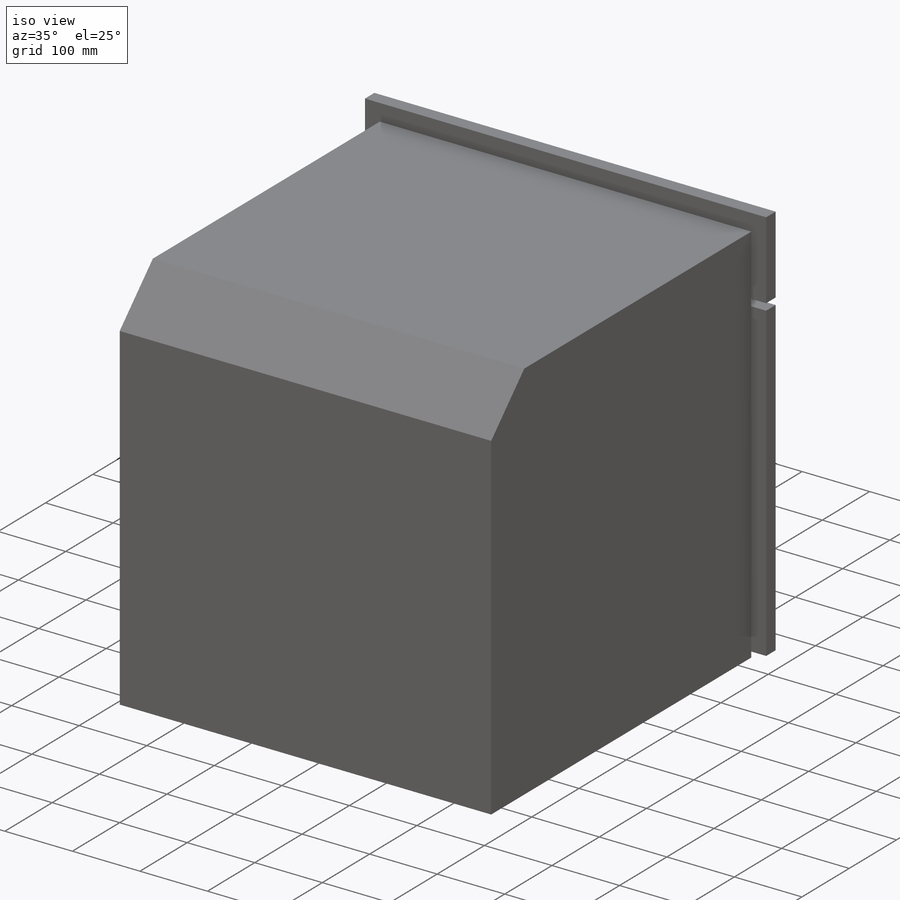
[diagram: iso view]
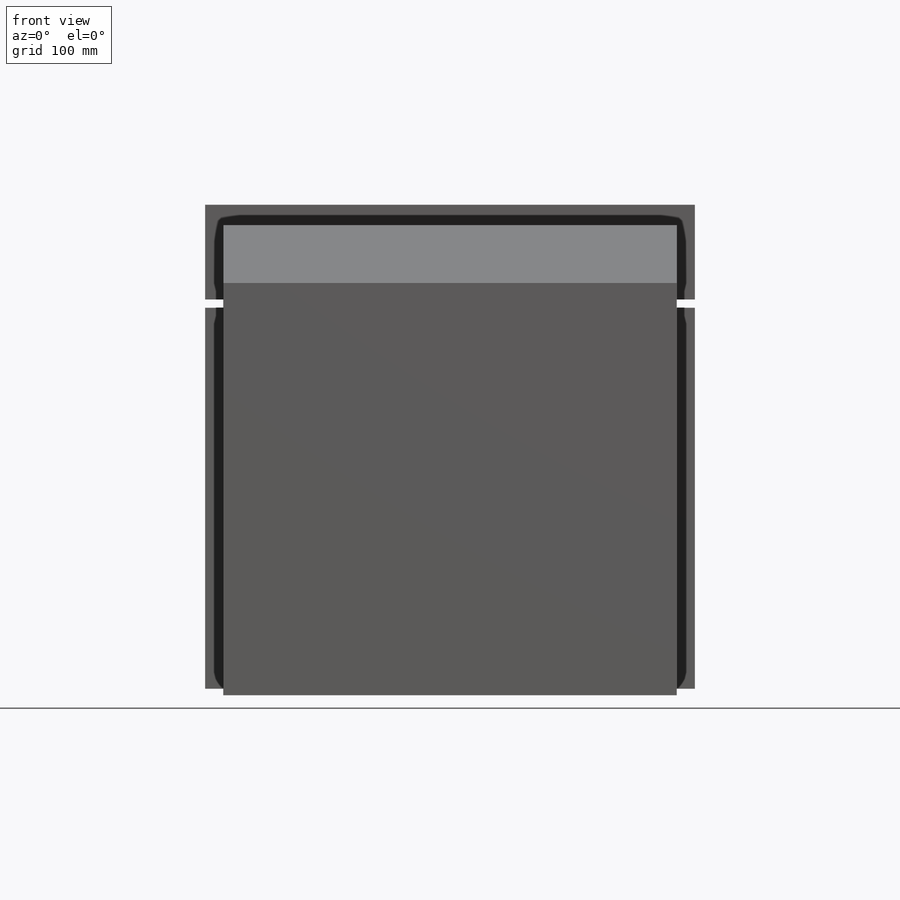
[diagram: front view]
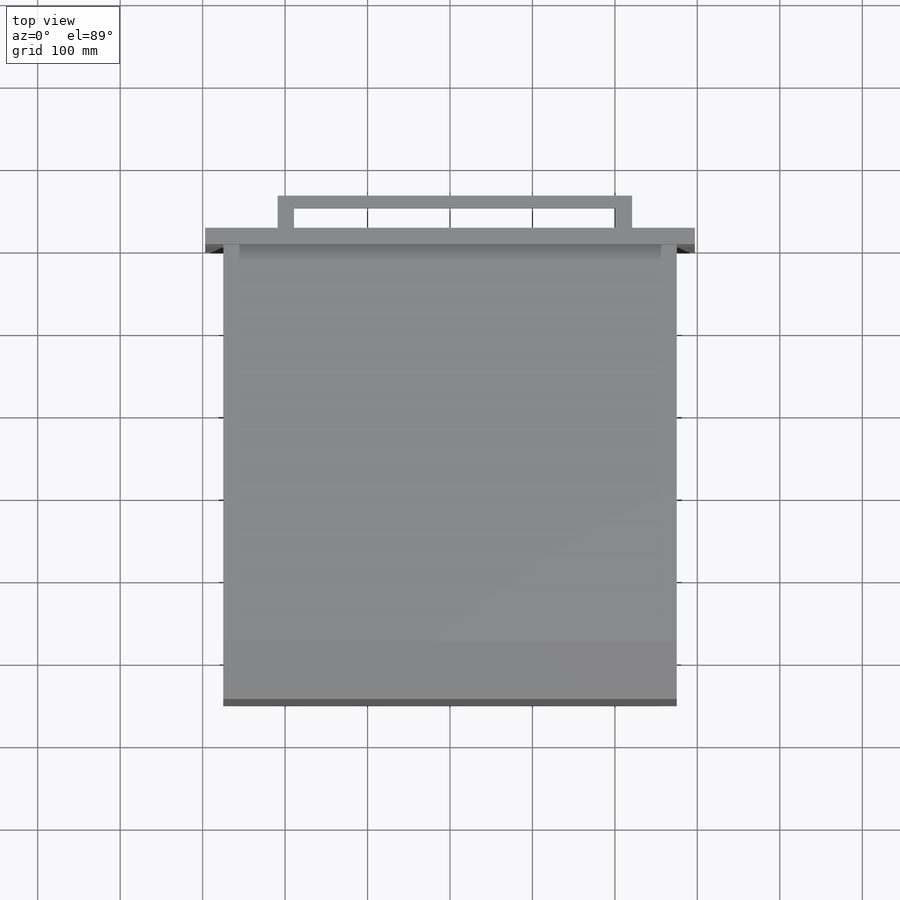
[diagram: top view]
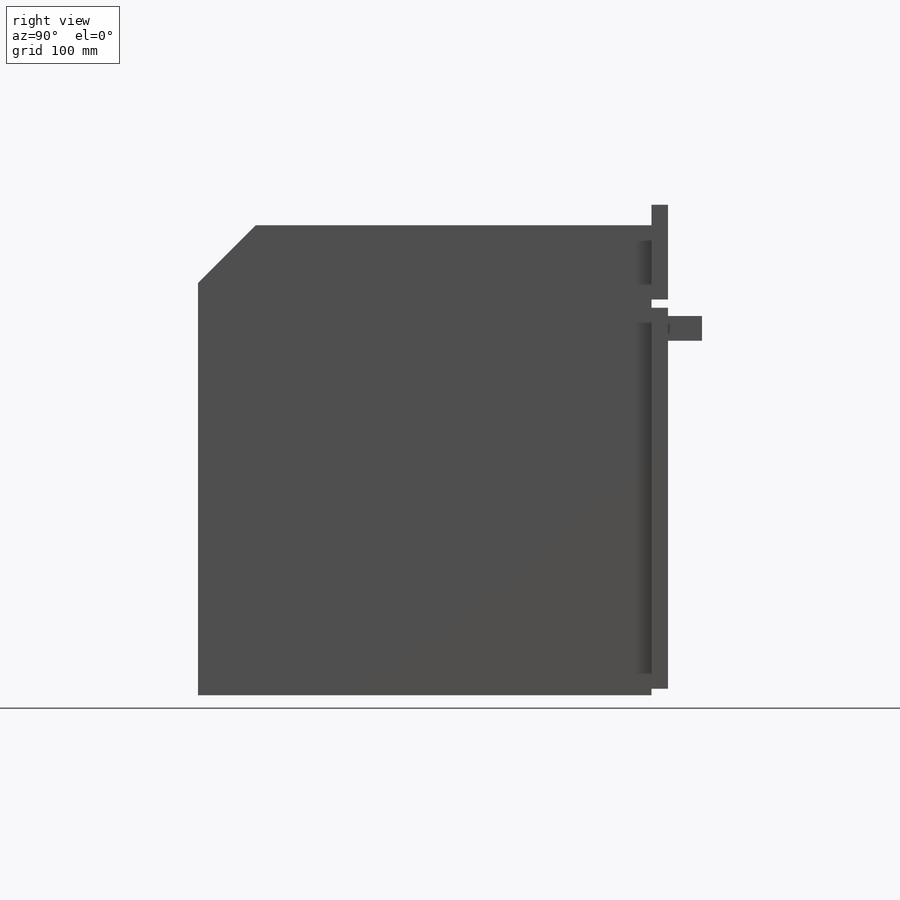
[diagram: right view]
SOLIDWORKS PART (.sldprt)
format: sldprt  version: not decoded by parser v0  size: 210,944 bytes
history: native  units: mm
features: sketch x5, extrude x4, material x1, chamfer x1, cut_extrude x1, plane x1 (+12 scaffold rows collapsed)
feature tree (25):
  scaffold x12  (default folders/planes/origin — collapsed)
  material  "Material <not specified>"
  sketch  "Sketch2"  dims[D1=570.0mm D2=550.0mm]
  extrude  "Boss-Extrude2"  Depth=550mm
  chamfer  "Chamfer1"  Distance=70mm Angle=45deg
  sketch  "Sketch3"  dims[D1=596.0mm D2=595.0mm]
  extrude  "Boss-Extrude3"  Depth=20mm
  sketch  "Sketch4"  dims[D1=52.0mm D2=18.0mm]
  extrude  "Boss-Extrude4"  Depth=0.01mm
  sketch  "Sketch5"  dims[D1=8.0mm D2=10.0mm D3=115.0mm]
  cut_extrude  "Cut-Extrude1"  Depth=20.01mm
  plane  "Plane1"  Offset=10mm
  sketch  "Sketch7"  dims[D1=430.0mm D2=20.0mm D3=15.0mm]
  extrude  "Boss-Extrude5"  Depth=30mm
decode coverage: 11 of 11 modeling features carry decoded parameters
note: suppression state not decoded; provenance and decode notes live in map.json
